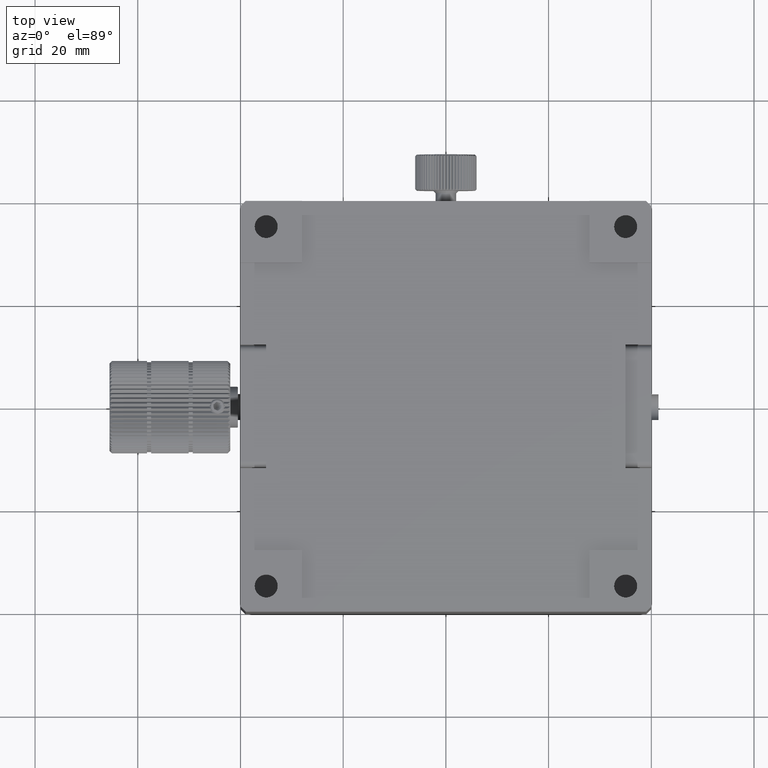
[diagram: clean part render]
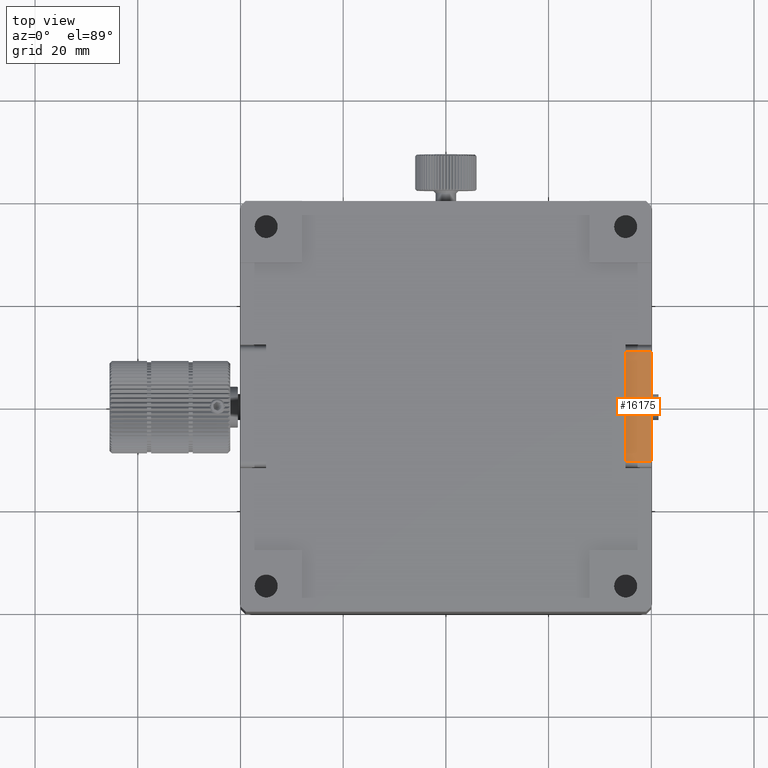
[diagram: same view with one face highlighted and labeled with its STEP entity id]
A machine part, top view. The second image highlights one B-rep face of the part: STEP entity #16175.
In plain terms, the highlighted planar face has unit normal (0, -0, -1).
Its self-contained STEP definition (entity closure, byte-faithful):
#1911 = PLANE ( 'NONE',  #41224 ) ;
#3893 = CARTESIAN_POINT ( 'NONE',  ( 40.00000000000003553, 10.70000000000000284, 159.2500000000000000 ) ) ;
#10399 = ORIENTED_EDGE ( 'NONE', *, *, #38391, .F. ) ;
#10426 = LINE ( 'NONE', #29841, #42830 ) ;
#11590 = VERTEX_POINT ( 'NONE', #23662 ) ;
#13714 = CARTESIAN_POINT ( 'NONE',  ( 40.00000000000003553, -10.70000000000000284, 159.2500000000000000 ) ) ;
#13896 = DIRECTION ( 'NONE',  ( 0.000000000000000000, 1.000000000000000000, -2.775557561562890735E-17 ) ) ;
#14762 = VERTEX_POINT ( 'NONE', #49689 ) ;
#15766 = ORIENTED_EDGE ( 'NONE', *, *, #26247, .F. ) ;
#16175 = ADVANCED_FACE ( 'NONE', ( #74931 ), #1911, .F. ) ;
#18834 = VECTOR ( 'NONE', #73602, 1000.000000000000000 ) ;
#20793 = EDGE_CURVE ( 'NONE', #45966, #35239, #60416, .T. ) ;
#21445 = VECTOR ( 'NONE', #50396, 1000.000000000000000 ) ;
#23662 = CARTESIAN_POINT ( 'NONE',  ( 40.00000000000003553, -10.70000000000000284, 159.2500000000000000 ) ) ;
#25962 = CARTESIAN_POINT ( 'NONE',  ( 35.00000000000003553, 10.70000000000000284, 159.2500000000000000 ) ) ;
#26247 = EDGE_CURVE ( 'NONE', #35239, #11590, #10426, .T. ) ;
#28615 = DIRECTION ( 'NONE',  ( -0.000000000000000000, -1.000000000000000000, 2.775557561562890735E-17 ) ) ;
#29841 = CARTESIAN_POINT ( 'NONE',  ( 40.00000000000003553, 11.90000000000000213, 159.2500000000000000 ) ) ;
#35239 = VERTEX_POINT ( 'NONE', #56084 ) ;
#36671 = ORIENTED_EDGE ( 'NONE', *, *, #72405, .F. ) ;
#36999 = CARTESIAN_POINT ( 'NONE',  ( 35.00000000000003553, 11.90000000000000213, 159.2500000000000000 ) ) ;
#38391 = EDGE_CURVE ( 'NONE', #11590, #14762, #69786, .T. ) ;
#41224 = AXIS2_PLACEMENT_3D ( 'NONE', #51388, #57182, #13896 ) ;
#42830 = VECTOR ( 'NONE', #28615, 1000.000000000000000 ) ;
#45966 = VERTEX_POINT ( 'NONE', #25962 ) ;
#49211 = ORIENTED_EDGE ( 'NONE', *, *, #20793, .F. ) ;
#49331 = LINE ( 'NONE', #36999, #59675 ) ;
#49689 = CARTESIAN_POINT ( 'NONE',  ( 35.00000000000003553, -10.70000000000000284, 159.2500000000000000 ) ) ;
#50137 = DIRECTION ( 'NONE',  ( 0.000000000000000000, 1.000000000000000000, 0.000000000000000000 ) ) ;
#50396 = DIRECTION ( 'NONE',  ( -1.000000000000000000, -0.000000000000000000, -0.000000000000000000 ) ) ;
#51388 = CARTESIAN_POINT ( 'NONE',  ( 40.00000000000003553, 11.90000000000000213, 159.2500000000000000 ) ) ;
#56084 = CARTESIAN_POINT ( 'NONE',  ( 40.00000000000003553, 10.70000000000000284, 159.2500000000000000 ) ) ;
#57182 = DIRECTION ( 'NONE',  ( 0.000000000000000000, -2.775557561562890735E-17, -1.000000000000000000 ) ) ;
#59675 = VECTOR ( 'NONE', #50137, 1000.000000000000000 ) ;
#60416 = LINE ( 'NONE', #3893, #18834 ) ;
#69786 = LINE ( 'NONE', #13714, #21445 ) ;
#72405 = EDGE_CURVE ( 'NONE', #14762, #45966, #49331, .T. ) ;
#73602 = DIRECTION ( 'NONE',  ( 1.000000000000000000, -0.000000000000000000, -0.000000000000000000 ) ) ;
#73848 = EDGE_LOOP ( 'NONE', ( #10399, #15766, #49211, #36671 ) ) ;
#74931 = FACE_OUTER_BOUND ( 'NONE', #73848, .T. ) ;